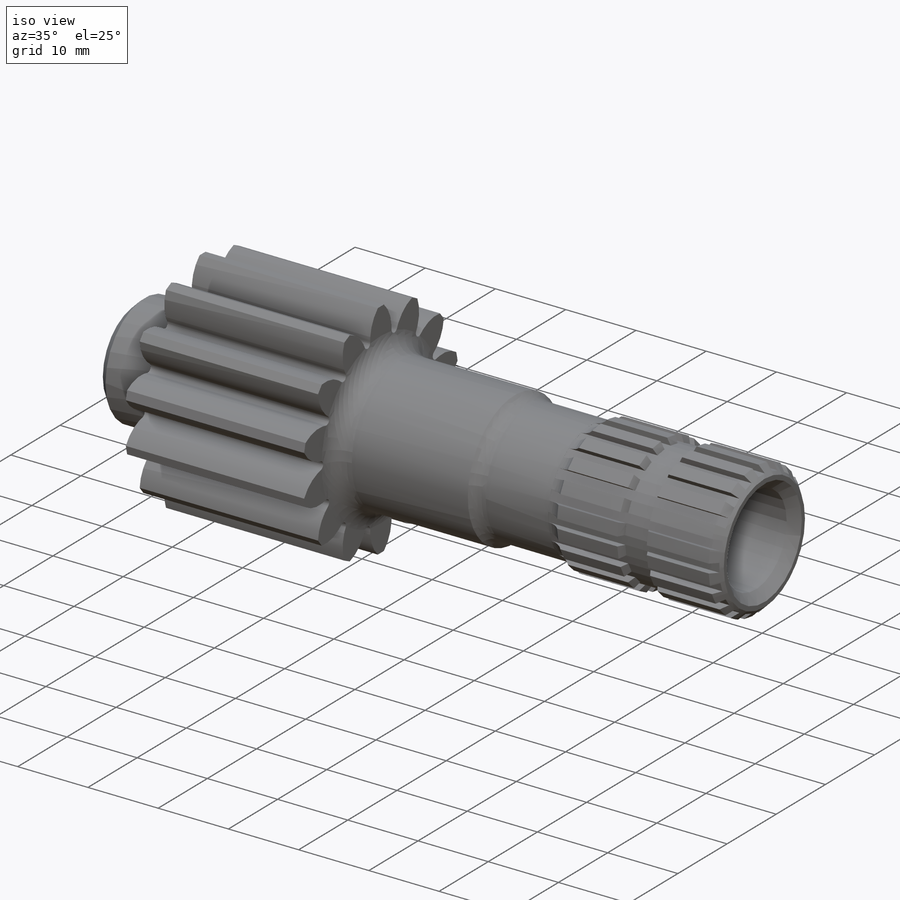
[diagram: iso view]
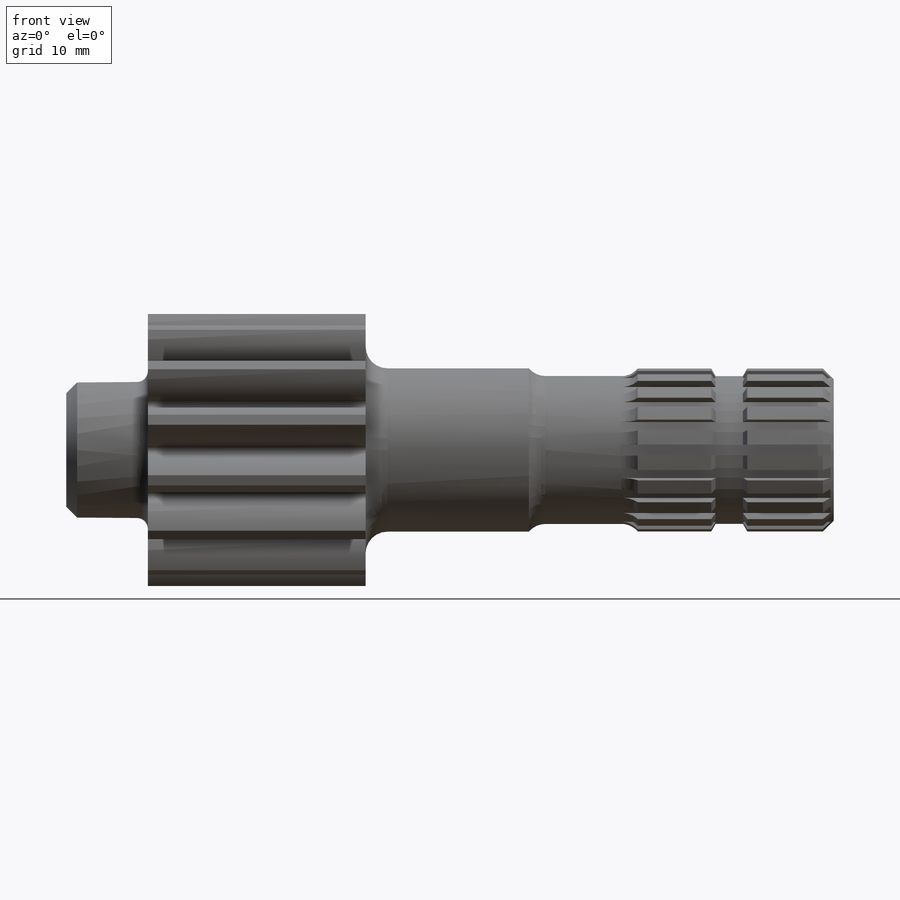
[diagram: front view]
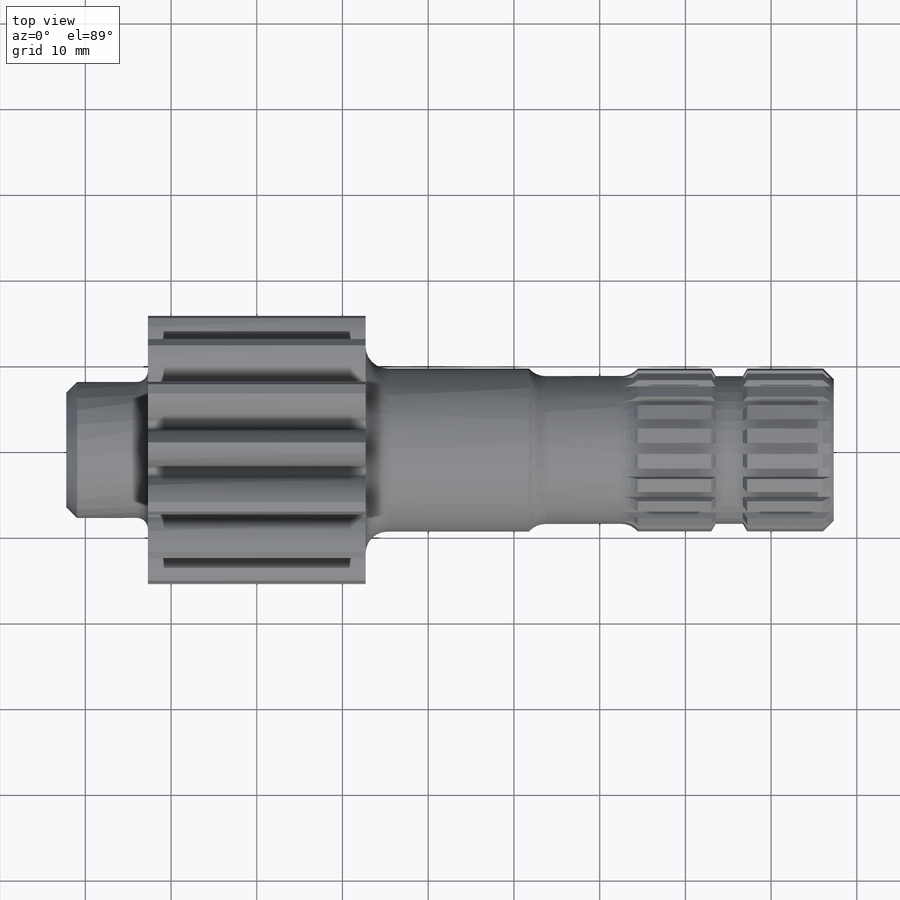
[diagram: top view]
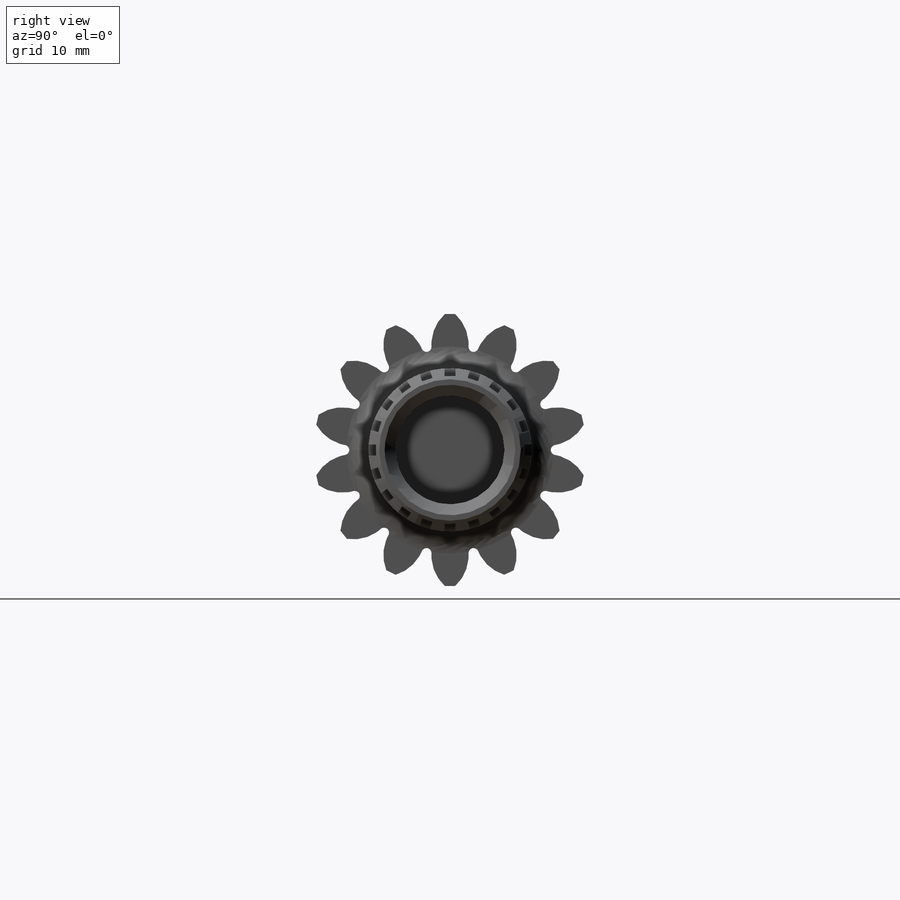
[diagram: right view]
SOLIDWORKS PART (.sldprt)
format: sldprt  version: not decoded by parser v0  size: 1,515,520 bytes
history: native  units: mm
features: sketch x6, cut_extrude x4, chamfer x3, fillet x2, material x1, revolve x1 (+11 scaffold rows collapsed)
feature tree (28):
  scaffold x11  (default folders/planes/origin — collapsed)
  material  "Alloy Steel"
  sketch  "Sketch1"  dims[c1.D1=15.875mm c1.D2=7.9375mm c1.D3=9.525mm c1.D4=9.525mm c1.D5=67.31mm c1.D6=31.75mm c1.D7=55.118mm c1.D8=~27.112636mm c1.D9=25.4mm c1.D10=19.05mm c1.D11=22.86mm c1.D12=8.636mm c1.D13=55.118mm c1.D14=3.175mm c1.D15=~0.454839mm c2.D15=60.0deg c2.D16=11.0998mm c2.D17=9.525mm]
  revolve  "Revolve1"  Angle=360deg
  fillet  "Fillet1"  Radius=2.54mm
  chamfer  "Chamfer1"  Distance=1.27mm Angle=45deg
  sketch  "Sketch2"  dims[c1.D1=19.05mm c1.D2=0.635mm c1.D3=0.889mm c1.D4=0.889mm c2.D4=20.0]
  cut_extrude  "Cut-Extrude2"  Depth=24.638mm
  sketch  "Sketch3"  dims[D1=12.7mm]
  cut_extrude  "Cut-Extrude3"  Depth=54.356mm
  chamfer  "Chamfer2"  Distance=1.27mm Angle=45deg
  sketch  "Sketch4"
  sketch  "Sketch Picture3"  dims[D1=23.495mm D2=2.54mm D3=2.54mm D4=14.0]
  cut_extrude  "Cut-Extrude5"  Depth=29.464mm
  fillet  "Fillet2"  Radius=1.27mm
  sketch  "Sketch5"  dims[D1=9.525mm]
  cut_extrude  "Cut-Extrude6"  Depth=6.35mm
  chamfer  "Chamfer3"  Distance=1.27mm Angle=45deg
decode coverage: 15 of 16 modeling features carry decoded parameters
note: ~ marks probable driven/reference dimensions
note: suppression state not decoded; provenance and decode notes live in map.json
